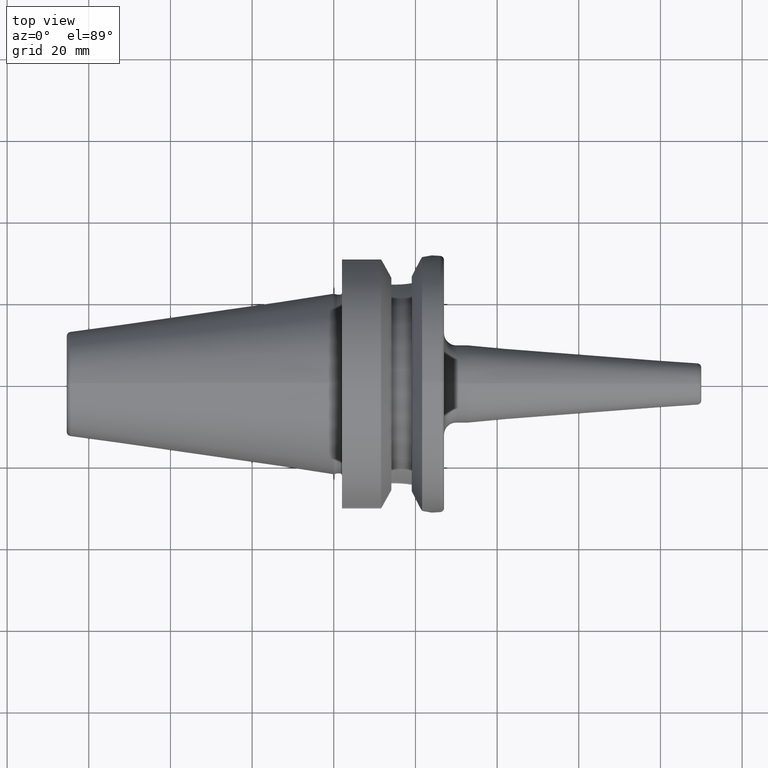
[diagram: clean part render]
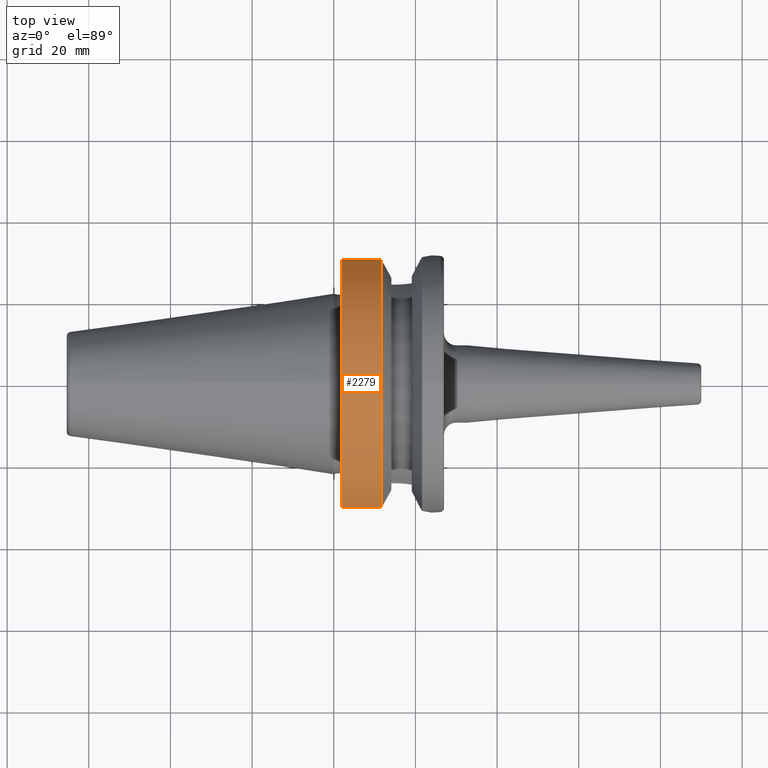
[diagram: same view with one face highlighted and labeled with its STEP entity id]
A machine part, top view. The second image highlights one B-rep face of the part: STEP entity #2279.
In plain terms, the highlighted cylindrical surface (partial cylindrical patch) has radius 31.5 mm, axis along (-1, 0, 0).
Its self-contained STEP definition (entity closure, byte-faithful):
#742=DIRECTION('',(-1.E0,0.E0,0.E0));
#743=VECTOR('',#742,9.5690365E0);
#744=CARTESIAN_POINT('',(1.15690365E1,-3.033554803451E1,8.485548034509E0));
#745=LINE('',#744,#743);
#746=CARTESIAN_POINT('',(2.E0,0.E0,0.E0));
#747=DIRECTION('',(-1.E0,0.E0,0.E0));
#748=DIRECTION('',(0.E0,-9.630332709368E-1,2.693824772860E-1));
#749=AXIS2_PLACEMENT_3D('',#746,#747,#748);
#751=DIRECTION('',(-1.E0,0.E0,0.E0));
#752=VECTOR('',#751,9.5690365E0);
#753=CARTESIAN_POINT('',(1.15690365E1,3.033554803451E1,8.485548034509E0));
#754=LINE('',#753,#752);
#797=CARTESIAN_POINT('',(1.15690365E1,0.E0,0.E0));
#798=DIRECTION('',(-1.E0,0.E0,0.E0));
#799=DIRECTION('',(0.E0,-9.630332709368E-1,2.693824772860E-1));
#800=AXIS2_PLACEMENT_3D('',#797,#798,#799);
#802=CARTESIAN_POINT('',(1.15690365E1,3.033554803451E1,8.485548034509E0));
#1138=VERTEX_POINT('',#802);
#1156=CARTESIAN_POINT('',(2.E0,3.033554803451E1,8.485548034509E0));
#1157=VERTEX_POINT('',#1156);
#1160=CARTESIAN_POINT('',(1.15690365E1,-3.033554803451E1,8.485548034509E0));
#1161=CARTESIAN_POINT('',(2.E0,-3.033554803451E1,8.485548034509E0));
#1162=VERTEX_POINT('',#1160);
#1163=VERTEX_POINT('',#1161);
#2264=CARTESIAN_POINT('',(0.E0,0.E0,0.E0));
#2265=DIRECTION('',(-1.E0,0.E0,0.E0));
#2266=DIRECTION('',(0.E0,0.E0,-1.E0));
#2267=AXIS2_PLACEMENT_3D('',#2264,#2265,#2266);
#2268=CYLINDRICAL_SURFACE('',#2267,3.15E1);
#2270=ORIENTED_EDGE('',*,*,#2269,.T.);
#2272=ORIENTED_EDGE('',*,*,#2271,.T.);
#2274=ORIENTED_EDGE('',*,*,#2273,.F.);
#2276=ORIENTED_EDGE('',*,*,#2275,.F.);
#2277=EDGE_LOOP('',(#2270,#2272,#2274,#2276));
#2278=FACE_OUTER_BOUND('',#2277,.F.);
#2279=ADVANCED_FACE('',(#2278),#2268,.T.);
#750=CIRCLE('',#749,3.15E1);
#801=CIRCLE('',#800,3.15E1);
#2269=EDGE_CURVE('',#1162,#1163,#745,.T.);
#2271=EDGE_CURVE('',#1163,#1157,#750,.T.);
#2273=EDGE_CURVE('',#1138,#1157,#754,.T.);
#2275=EDGE_CURVE('',#1162,#1138,#801,.T.);